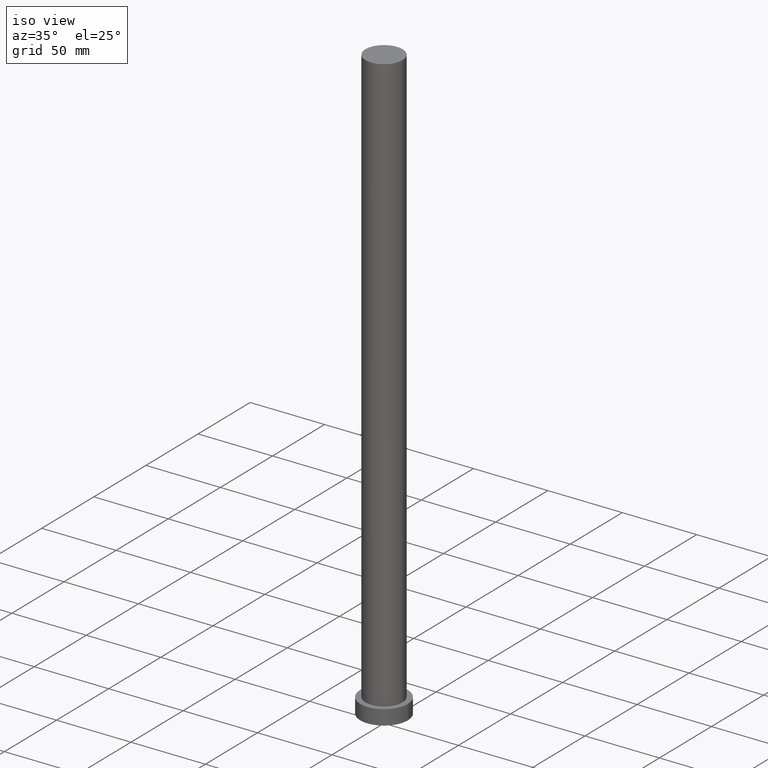
[diagram: clean part render]
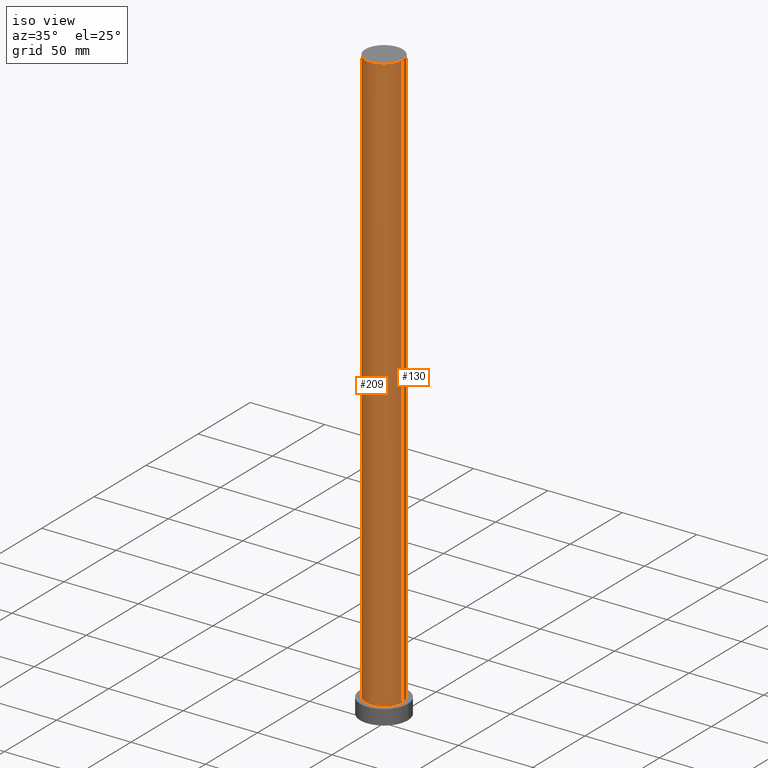
[diagram: same view with one multi-face feature highlighted, each face labeled with its STEP entity id]
A machine part, iso view. The highlighted faces form ONE feature: a constant-radius fillet chain: 2 tangent blend faces with common blend radius 12.5 mm. The faces share edges in the B-rep.
Their STEP definitions:
[1] entity #130 (Cylinder):
#6 = EDGE_CURVE ( 'NONE', #13, #141, #115, .T. ) ;
#13 = VERTEX_POINT ( 'NONE', #112 ) ;
#20 = CARTESIAN_POINT ( 'NONE',  ( 0.000000000000000000, 0.000000000000000000, 400.0000000000000000 ) ) ;
#45 = DIRECTION ( 'NONE',  ( 0.000000000000000000, 0.000000000000000000, 1.000000000000000000 ) ) ;
#52 = AXIS2_PLACEMENT_3D ( 'NONE', #20, #208, #89 ) ;
#53 = DIRECTION ( 'NONE',  ( 0.000000000000000000, 0.000000000000000000, 1.000000000000000000 ) ) ;
#57 = CIRCLE ( 'NONE', #70, 12.50000000000000000 ) ;
#70 = AXIS2_PLACEMENT_3D ( 'NONE', #230, #53, #131 ) ;
#73 = DIRECTION ( 'NONE',  ( -0.000000000000000000, -0.000000000000000000, -1.000000000000000000 ) ) ;
#83 = ORIENTED_EDGE ( 'NONE', *, *, #138, .F. ) ;
#89 = DIRECTION ( 'NONE',  ( -1.000000000000000000, 0.000000000000000000, 0.000000000000000000 ) ) ;
#92 = CARTESIAN_POINT ( 'NONE',  ( 12.50000000000000000, 1.530808498934191521E-15, 10.00000000000000000 ) ) ;
#94 = VECTOR ( 'NONE', #73, 1000.000000000000000 ) ;
#100 = CARTESIAN_POINT ( 'NONE',  ( 0.000000000000000000, 0.000000000000000000, 10.00000000000000000 ) ) ;
#109 = AXIS2_PLACEMENT_3D ( 'NONE', #100, #45, #205 ) ;
#112 = CARTESIAN_POINT ( 'NONE',  ( 12.50000000000000000, 1.530808498934191521E-15, 400.0000000000000000 ) ) ;
#114 = DIRECTION ( 'NONE',  ( -0.000000000000000000, -0.000000000000000000, -1.000000000000000000 ) ) ;
#115 = LINE ( 'NONE', #169, #251 ) ;
#118 = VERTEX_POINT ( 'NONE', #191 ) ;
#130 = ADVANCED_FACE ( 'NONE', ( #253 ), #189, .T. ) ;
#131 = DIRECTION ( 'NONE',  ( 1.000000000000000000, 0.000000000000000000, 0.000000000000000000 ) ) ;
#138 = EDGE_CURVE ( 'NONE', #160, #118, #255, .T. ) ;
#141 = VERTEX_POINT ( 'NONE', #92 ) ;
#145 = EDGE_CURVE ( 'NONE', #13, #160, #57, .T. ) ;
#149 = CARTESIAN_POINT ( 'NONE',  ( -12.50000000000000000, 0.000000000000000000, 400.0000000000000000 ) ) ;
#160 = VERTEX_POINT ( 'NONE', #180 ) ;
#162 = ORIENTED_EDGE ( 'NONE', *, *, #188, .T. ) ;
#169 = CARTESIAN_POINT ( 'NONE',  ( 12.50000000000000000, 1.530808498934191521E-15, 400.0000000000000000 ) ) ;
#171 = CIRCLE ( 'NONE', #109, 12.50000000000000000 ) ;
#180 = CARTESIAN_POINT ( 'NONE',  ( -12.50000000000000000, 0.000000000000000000, 400.0000000000000000 ) ) ;
#188 = EDGE_CURVE ( 'NONE', #141, #118, #171, .T. ) ;
#189 = CYLINDRICAL_SURFACE ( 'NONE', #52, 12.50000000000000000 ) ;
#191 = CARTESIAN_POINT ( 'NONE',  ( -12.50000000000000000, 0.000000000000000000, 10.00000000000000000 ) ) ;
#205 = DIRECTION ( 'NONE',  ( 1.000000000000000000, 0.000000000000000000, 0.000000000000000000 ) ) ;
#206 = EDGE_LOOP ( 'NONE', ( #246, #250, #162, #83 ) ) ;
#208 = DIRECTION ( 'NONE',  ( -0.000000000000000000, -0.000000000000000000, -1.000000000000000000 ) ) ;
#230 = CARTESIAN_POINT ( 'NONE',  ( 0.000000000000000000, 0.000000000000000000, 400.0000000000000000 ) ) ;
#246 = ORIENTED_EDGE ( 'NONE', *, *, #145, .F. ) ;
#250 = ORIENTED_EDGE ( 'NONE', *, *, #6, .T. ) ;
#251 = VECTOR ( 'NONE', #114, 1000.000000000000000 ) ;
#253 = FACE_OUTER_BOUND ( 'NONE', #206, .T. ) ;
#255 = LINE ( 'NONE', #149, #94 ) ;
[2] entity #209 (Cylinder):
#6 = EDGE_CURVE ( 'NONE', #13, #141, #115, .T. ) ;
#13 = VERTEX_POINT ( 'NONE', #112 ) ;
#30 = EDGE_CURVE ( 'NONE', #160, #13, #35, .T. ) ;
#35 = CIRCLE ( 'NONE', #140, 12.50000000000000000 ) ;
#36 = DIRECTION ( 'NONE',  ( 1.000000000000000000, 0.000000000000000000, 0.000000000000000000 ) ) ;
#50 = CYLINDRICAL_SURFACE ( 'NONE', #77, 12.50000000000000000 ) ;
#71 = ORIENTED_EDGE ( 'NONE', *, *, #138, .T. ) ;
#72 = DIRECTION ( 'NONE',  ( 0.000000000000000000, 0.000000000000000000, 1.000000000000000000 ) ) ;
#73 = DIRECTION ( 'NONE',  ( -0.000000000000000000, -0.000000000000000000, -1.000000000000000000 ) ) ;
#77 = AXIS2_PLACEMENT_3D ( 'NONE', #117, #199, #80 ) ;
#80 = DIRECTION ( 'NONE',  ( -1.000000000000000000, 0.000000000000000000, 0.000000000000000000 ) ) ;
#82 = AXIS2_PLACEMENT_3D ( 'NONE', #133, #128, #36 ) ;
#92 = CARTESIAN_POINT ( 'NONE',  ( 12.50000000000000000, 1.530808498934191521E-15, 10.00000000000000000 ) ) ;
#94 = VECTOR ( 'NONE', #73, 1000.000000000000000 ) ;
#97 = EDGE_CURVE ( 'NONE', #118, #141, #177, .T. ) ;
#112 = CARTESIAN_POINT ( 'NONE',  ( 12.50000000000000000, 1.530808498934191521E-15, 400.0000000000000000 ) ) ;
#114 = DIRECTION ( 'NONE',  ( -0.000000000000000000, -0.000000000000000000, -1.000000000000000000 ) ) ;
#115 = LINE ( 'NONE', #169, #251 ) ;
#117 = CARTESIAN_POINT ( 'NONE',  ( 0.000000000000000000, 0.000000000000000000, 400.0000000000000000 ) ) ;
#118 = VERTEX_POINT ( 'NONE', #191 ) ;
#128 = DIRECTION ( 'NONE',  ( 0.000000000000000000, 0.000000000000000000, 1.000000000000000000 ) ) ;
#133 = CARTESIAN_POINT ( 'NONE',  ( 0.000000000000000000, 0.000000000000000000, 10.00000000000000000 ) ) ;
#138 = EDGE_CURVE ( 'NONE', #160, #118, #255, .T. ) ;
#140 = AXIS2_PLACEMENT_3D ( 'NONE', #148, #72, #168 ) ;
#141 = VERTEX_POINT ( 'NONE', #92 ) ;
#148 = CARTESIAN_POINT ( 'NONE',  ( 0.000000000000000000, 0.000000000000000000, 400.0000000000000000 ) ) ;
#149 = CARTESIAN_POINT ( 'NONE',  ( -12.50000000000000000, 0.000000000000000000, 400.0000000000000000 ) ) ;
#160 = VERTEX_POINT ( 'NONE', #180 ) ;
#163 = FACE_OUTER_BOUND ( 'NONE', #248, .T. ) ;
#168 = DIRECTION ( 'NONE',  ( 1.000000000000000000, 0.000000000000000000, 0.000000000000000000 ) ) ;
#169 = CARTESIAN_POINT ( 'NONE',  ( 12.50000000000000000, 1.530808498934191521E-15, 400.0000000000000000 ) ) ;
#177 = CIRCLE ( 'NONE', #82, 12.50000000000000000 ) ;
#178 = ORIENTED_EDGE ( 'NONE', *, *, #97, .T. ) ;
#180 = CARTESIAN_POINT ( 'NONE',  ( -12.50000000000000000, 0.000000000000000000, 400.0000000000000000 ) ) ;
#191 = CARTESIAN_POINT ( 'NONE',  ( -12.50000000000000000, 0.000000000000000000, 10.00000000000000000 ) ) ;
#199 = DIRECTION ( 'NONE',  ( -0.000000000000000000, -0.000000000000000000, -1.000000000000000000 ) ) ;
#201 = ORIENTED_EDGE ( 'NONE', *, *, #6, .F. ) ;
#204 = ORIENTED_EDGE ( 'NONE', *, *, #30, .F. ) ;
#209 = ADVANCED_FACE ( 'NONE', ( #163 ), #50, .T. ) ;
#248 = EDGE_LOOP ( 'NONE', ( #201, #204, #71, #178 ) ) ;
#251 = VECTOR ( 'NONE', #114, 1000.000000000000000 ) ;
#255 = LINE ( 'NONE', #149, #94 ) ;